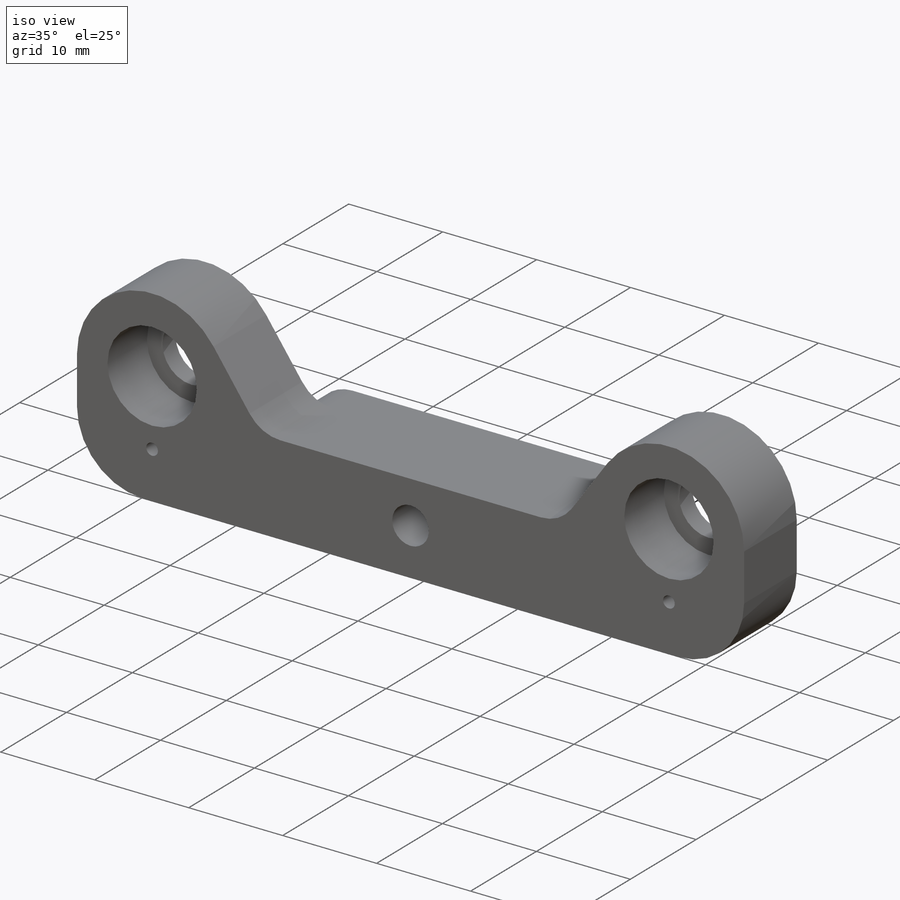
[diagram: iso view]
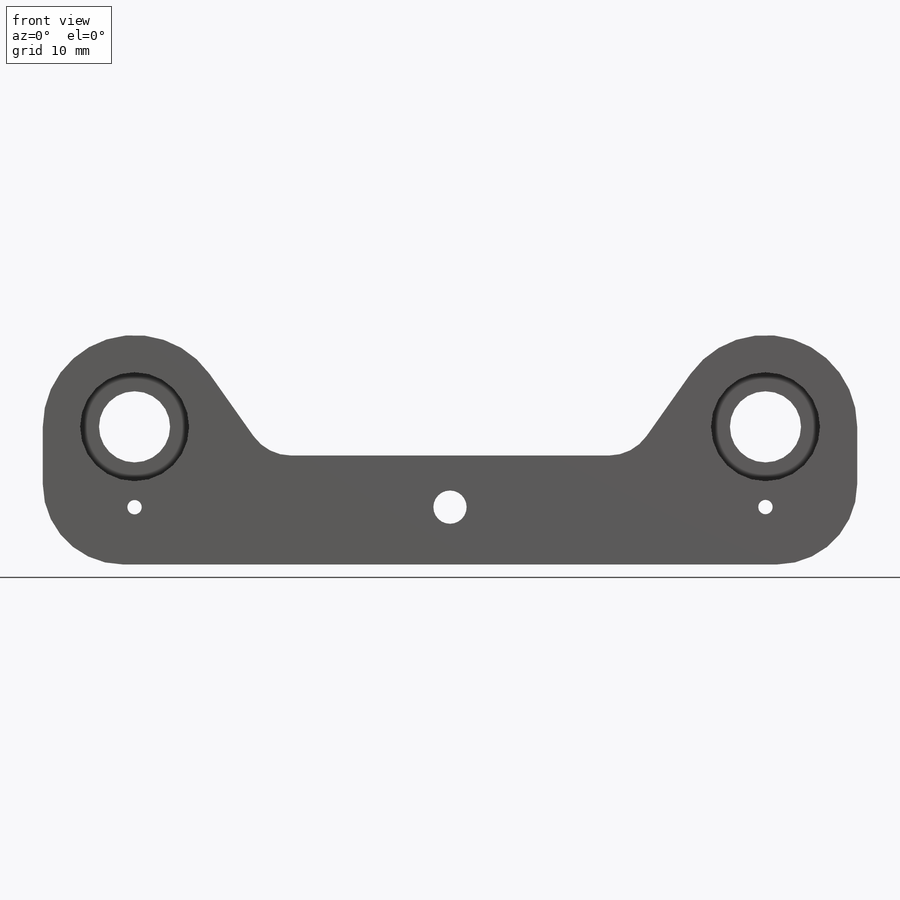
[diagram: front view]
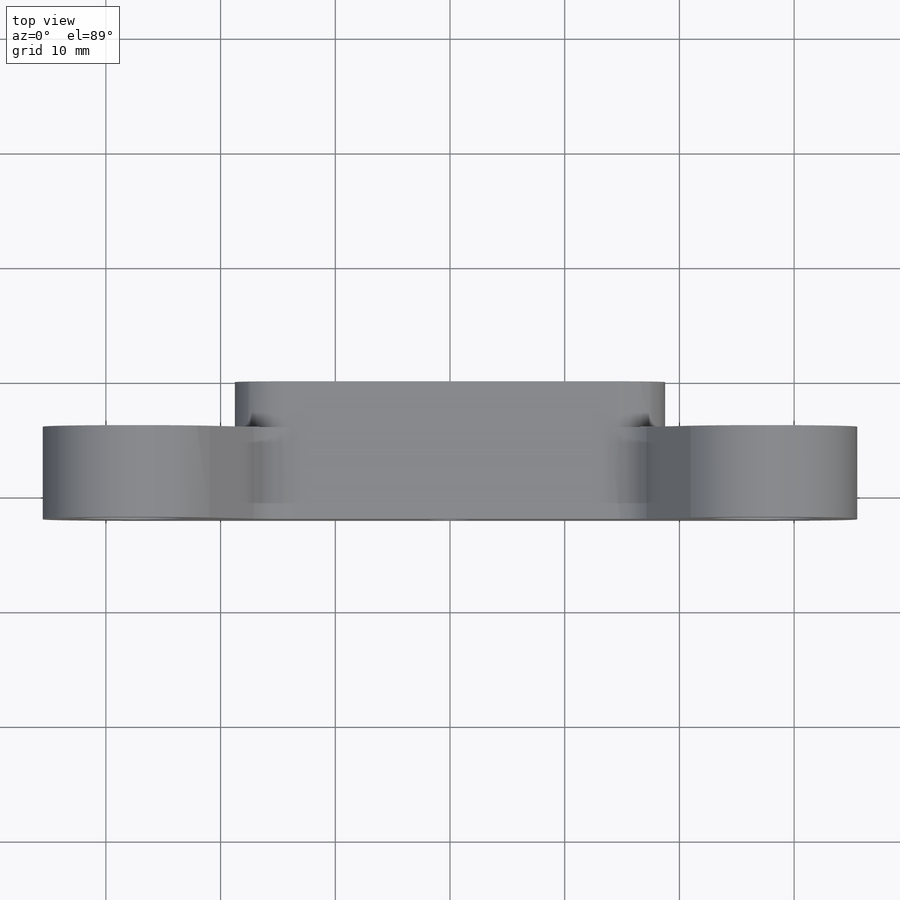
[diagram: top view]
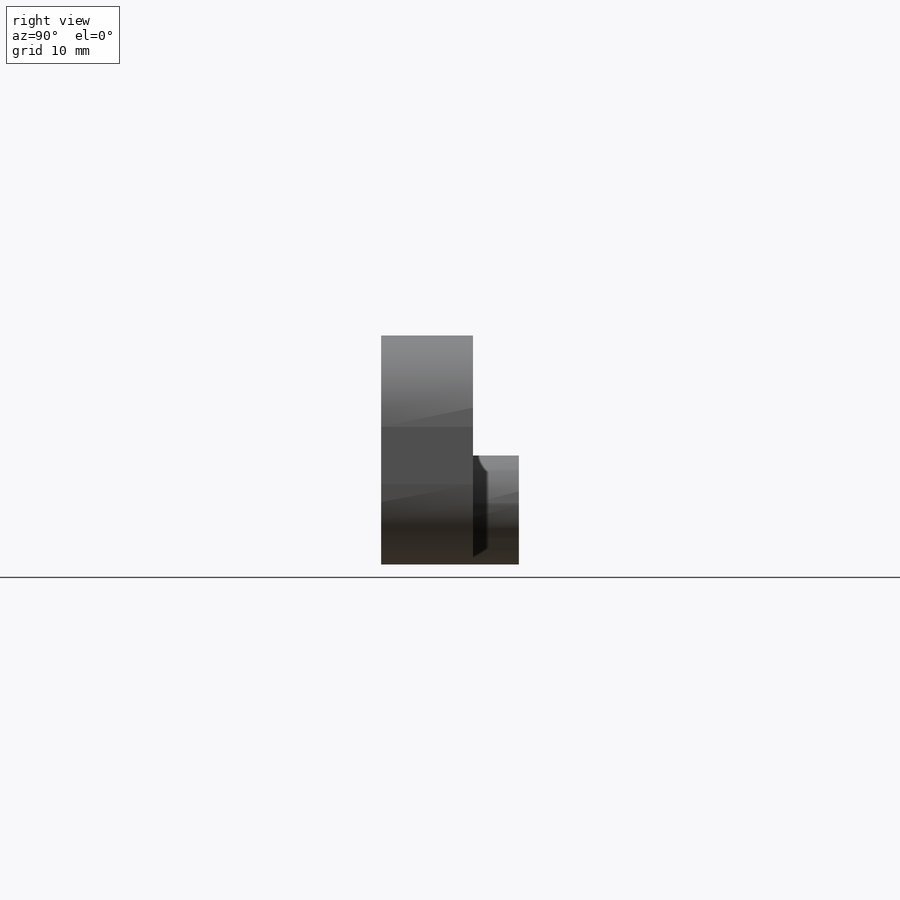
[diagram: right view]
SOLIDWORKS PART (.sldprt)
format: sldprt  version: not decoded by parser v0  size: 1,021,952 bytes
history: native  units: mm
features: sketch x33, extrude x11, cut_extrude x11, mirror x6, hole x5, fillet x3, chamfer x2, material x1 (+12 scaffold rows collapsed)
feature tree (84):
  scaffold x12  (default folders/planes/origin — collapsed)
  material  "ABS"
  sketch  "Sketch1"  dims[D1=68.5mm D2=7.0mm]
  extrude  "Boss-Extrude1"  Depth=12mm
  sketch  "Sketch2"  dims[c1.D1=12.5mm c1.D2=15.0mm c1.D3=15.0mm c2.D1=6.3mm c2.D3=19.0mm c2.D2=37.5mm]
  cut_extrude  "Cut-Extrude1"  [1 undecoded]
  sketch  "Sketch3"  dims[D1=13.5mm]
  extrude  "Boss-Extrude2"  Depth=10mm
  sketch  "Sketch4"  dims[D2=6.2mm D1=7.0mm]
  cut_extrude  "Cut-Extrude2"  Depth=24.5mm
  sketch  "Sketch5"  dims[c1.D1=~21.214763mm c2.D1=15.0deg c2.D2=15.0mm]
  cut_extrude  "Cut-Extrude3"  Depth=5mm
  sketch  "Sketch6"  dims[D1=12.4mm]
  cut_extrude  "Cut-Extrude4"  Depth=1mm
  mirror  "Mirror1"
  mirror  "Mirror2"
  sketch  "Sketch7"  dims[D1=8.5mm]
  cut_extrude  "Cut-Extrude5"  Depth=1mm
  mirror  "Mirror3"
  mirror  "Mirror5"
  hole  "Tap Drill for M2 Tap1"  Diameter=1.6mm Depth=24.00005mm
  sketch  "Sketch9"  dims[D1=50.0mm]
  sketch  "Sketch10"  dims[hole-wizard template sketch: 60 standard entries collapsed; hole parameters kept: c18.Thru Hole Depth=~24.00005mm]
  sketch  "Sketch11"  dims[D1=2.25mm]
  cut_extrude  "Cut-Extrude6"  Depth=27mm
  mirror  "Mirror6"
  sketch  "Sketch12"
  cut_extrude  "Cut-Extrude7"  Depth=22mm
  hole  "Ø2.0 (2) Diameter Hole2"  Diameter=2mm Depth=16mm
  sketch  "Sketch14"  dims[D1=30.0mm]
  sketch  "Sketch13"  dims[hole-wizard template sketch: 47 standard entries collapsed; hole parameters kept: c15.Hole Depth=16.0mm c15.D3=~14.816244mm c15.Drill Angle=118.0deg]
  hole  "Ø2.0 (2) Diameter Hole1"  Diameter=2mm Depth=16mm
  sketch  "Sketch16"
  sketch  "Sketch15"  dims[hole-wizard template sketch: 47 standard entries collapsed; hole parameters kept: c15.Hole Depth=16.0mm c15.D3=~14.816244mm c15.Drill Angle=118.0deg]
  sketch  "Esquisse5"
  extrude  "Boss.-Extru.1"  [1 undecoded]
  sketch  "Esquisse6"  dims[D1=9.5mm]
  cut_extrude  "Enlèv. mat.-Extru.1"  Depth=6mm
  mirror  "Symétrie1"
  sketch  "Esquisse7"
  extrude  "Boss.-Extru.2"  [1 undecoded]
  sketch  "Esquisse9"  dims[D3=1.2mm D4=1.2mm D1=27.5mm D2=27.5mm]
  cut_extrude  "Enlèv. mat.-Extru.2"  [1 undecoded]
  sketch  "Sketch18"  dims[D1=0.0mm]
  extrude  "Boss-Extrude3"  Depth=1.5mm
  sketch  "Sketch24"
  cut_extrude  "Cut-Extrude8"  Depth=0.85mm
  sketch  "Sketch19"  dims[c1.D1=36.0mm c2.D1=45.0deg c3.D1=15.0mm]
  extrude  "Boss-Extrude4"  Depth=8mm
  hole  "M2.5 Clearance Hole1"  Diameter=2.9mm Depth=24mm
  sketch  "Sketch22"
  sketch  "Sketch21"  dims[hole-wizard template sketch: 47 standard entries collapsed; hole parameters kept: c15.Hole Depth=24.0mm c15.D3=~14.816244mm c15.Drill Angle=118.0deg]
  sketch  "Sketch26"
  extrude  "Boss-Extrude6"  Depth=1mm
  sketch  "Sketch27"  dims[D1=3.9mm]
  cut_extrude  "Cut-Extrude9"  Depth=4.5mm
  chamfer  "Chamfer2"  Distance=2.5mm Angle=45deg
  sketch  "Sketch28"
  extrude  "Boss-Extrude7"  Depth=2mm
  sketch  "Sketch29"  dims[D1=16.0mm]
  extrude  "Boss-Extrude8"  [1 undecoded]
  sketch  "Sketch31"
  extrude  "Boss-Extrude9"  [1 undecoded]
  fillet  "Fillet1"  Radius=7mm
  sketch  "Sketch32"
  extrude  "Boss-Extrude10"  [1 undecoded]
  fillet  "Fillet2"  Radius=4mm
  sketch  "Sketch33"
  hole  "Tap Drill for M1.6 Tap1"  Diameter=1.25mm Depth=30.5mm
  sketch  "Sketch36"
  sketch  "Sketch35"  dims[hole-wizard template sketch: 47 standard entries collapsed; hole parameters kept: c15.Hole Depth=30.5mm c15.D3=~14.816244mm c15.Drill Angle=180.0deg]
  chamfer  "Chamfer3"  Distance=3.5mm Angle=45deg
  fillet  "Fillet3"  Radius=4mm
decode coverage: 46 of 71 modeling features carry decoded parameters
note: ~ marks probable driven/reference dimensions
note: 7 parameter values undecoded
summary: no parameter record found for 7 features; Diameter pulled from absorbed wizard sketch
note: suppression state not decoded; provenance and decode notes live in map.json
